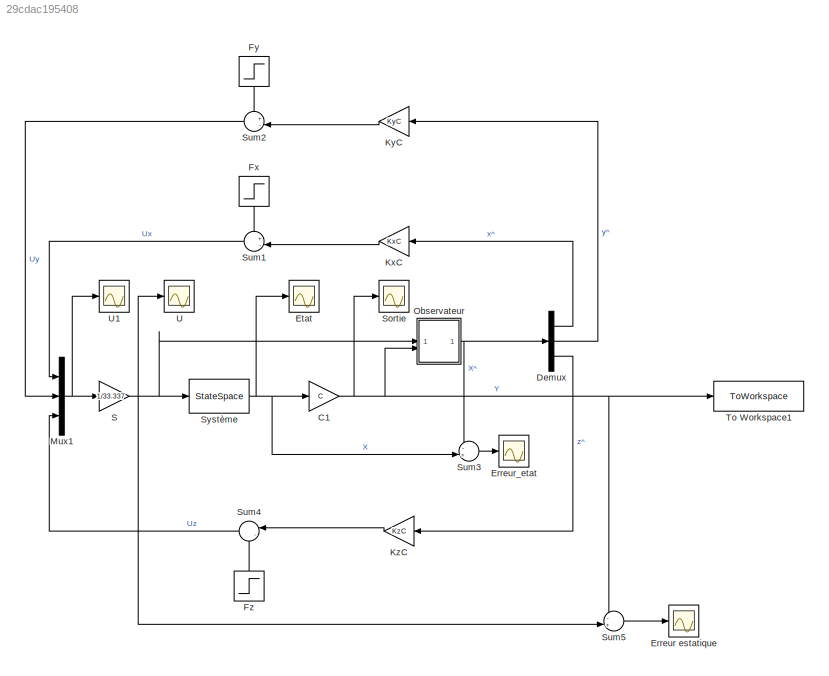
MODEL slx_29cdac195408
KIND model
CONFIG AbsTol = auto
CONFIG EnableMultiTasking = off
CONFIG FixedStep = auto
CONFIG MaxStep = 0.001
CONFIG MinStep = auto
CONFIG RelTol = 1e-3
CONFIG SampleTimeConstraint = Unconstrained
CONFIG SolverName = VariableStepAuto
CONFIG StartTime = 0.0
CONFIG StopTime = 10
BLOCK [Gain] C1
  Gain = C
  Multiplication = Matrix(K*u)
BLOCK [Demux] Demux
  Outputs = 3
BLOCK [Scope] Erreur estatique
  Floating = off
  NumInputPorts = 1
  ScopeSpecificationString = Simulink.scopes.TimeScopeBlockCfg('CurrentConfiguration', extmgr.ConfigurationSet(extmgr.Configuration('Core','General UI',true),extmgr.Configuration('Core','Source UI',true),extmgr.Configuration('Sources','WiredSimulink',true,'DataLoggingVariableName','ScopeData1'),extmgr.Configuration('Visuals','Time Domain',true,'SerializedDisplays',{struct('MinYLimReal','-49.5947','MaxYLimReal','58.75711','YLa...<+1520ch>
BLOCK [Scope] Erreur_etat
  Floating = off
  NumInputPorts = 1
  ScopeSpecificationString = Simulink.scopes.TimeScopeBlockCfg('CurrentConfiguration', extmgr.ConfigurationSet(extmgr.Configuration('Core','General UI',true),extmgr.Configuration('Core','Source UI',true),extmgr.Configuration('Sources','WiredSimulink',true,'DataLoggingVariableName','ScopeData1'),extmgr.Configuration('Visuals','Time Domain',true,'SerializedDisplays',{struct('MinYLimReal','-8.2297','MaxYLimReal','11.97116','YLab...<+1545ch>
BLOCK [Scope] Etat
  Floating = off
  NumInputPorts = 1
  ScopeSpecificationString = Simulink.scopes.TimeScopeBlockCfg('CurrentConfiguration', extmgr.ConfigurationSet(extmgr.Configuration('Core','General UI',true),extmgr.Configuration('Core','Source UI',true),extmgr.Configuration('Sources','WiredSimulink',true,'DataLoggingVariableName','ScopeData2'),extmgr.Configuration('Visuals','Time Domain',true,'SerializedDisplays',{struct('MinYLimReal','-13.23354','MaxYLimReal','6.14675','YLa...<+1530ch>
BLOCK [Step] Fx
  NameLocation = left
  SampleTime = 0
  Time = 0
BLOCK [Step] Fy
  NameLocation = left
  SampleTime = 0
  Time = 0
BLOCK [Step] Fz
  NameLocation = right
  SampleTime = 0
  Time = 0
BLOCK [Gain] KxC
  Gain = KxC
  Multiplication = Matrix(K*u)
BLOCK [Gain] KyC
  Gain = KyC
  Multiplication = Matrix(K*u)
BLOCK [Gain] KzC
  Gain = KzC
  Multiplication = Matrix(K*u)
BLOCK [Mux] Mux1
  DisplayOption = bar
  Inputs = 3
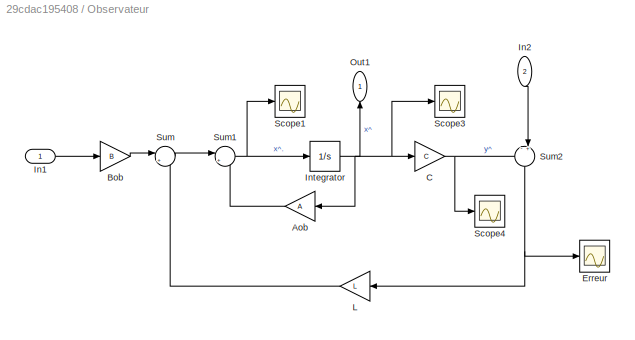
BLOCK [SubSystem] Observateur
BLOCK [Gain] Observateur/Aob
  Gain = A
  Multiplication = Matrix(K*u)
BLOCK [Gain] Observateur/Bob
  Gain = B
  Multiplication = Matrix(K*u)
BLOCK [Gain] Observateur/C
  Gain = C
  Multiplication = Matrix(K*u)
BLOCK [Scope] Observateur/Erreur
  Floating = off
  NumInputPorts = 1
  ScopeSpecificationString = Simulink.scopes.TimeScopeBlockCfg('CurrentConfiguration', extmgr.ConfigurationSet(extmgr.Configuration('Core','General UI',true),extmgr.Configuration('Core','Source UI',true),extmgr.Configuration('Sources','WiredSimulink',true,'DataLoggingVariableName','ScopeData4'),extmgr.Configuration('Visuals','Time Domain',true,'SerializedDisplays',{struct('MinYLimReal','-0.125','MaxYLimReal','0.125','YLabelRe...<+1539ch>
BLOCK [Inport] Observateur/In1
BLOCK [Inport] Observateur/In2
  NameLocation = left
  Port = 2
BLOCK [Integrator] Observateur/Integrator
BLOCK [Gain] Observateur/L
  Gain = L
  Multiplication = Matrix(K*u)
BLOCK [Outport] Observateur/Out1
  NameLocation = right
BLOCK [Scope] Observateur/Scope1
  Floating = off
  NumInputPorts = 1
  ScopeSpecificationString = Simulink.scopes.TimeScopeBlockCfg('CurrentConfiguration', extmgr.ConfigurationSet(extmgr.Configuration('Core','General UI',true),extmgr.Configuration('Core','Source UI',true),extmgr.Configuration('Sources','WiredSimulink',true,'DataLoggingVariableName','ScopeData1'),extmgr.Configuration('Visuals','Time Domain',true,'SerializedDisplays',{struct('MinYLimReal','-1615.70216','MaxYLimReal','1849.68617'...<+1562ch>
BLOCK [Scope] Observateur/Scope3
  Floating = off
  NumInputPorts = 1
  ScopeSpecificationString = Simulink.scopes.TimeScopeBlockCfg('CurrentConfiguration', extmgr.ConfigurationSet(extmgr.Configuration('Core','General UI',true),extmgr.Configuration('Core','Source UI',true),extmgr.Configuration('Sources','WiredSimulink',true,'DataLoggingVariableName','ScopeData2'),extmgr.Configuration('Visuals','Time Domain',true,'SerializedDisplays',{struct('MinYLimReal','-7.70651','MaxYLimReal','5.63694','YLab...<+1531ch>
BLOCK [Scope] Observateur/Scope4
  Floating = off
  NumInputPorts = 1
  ScopeSpecificationString = Simulink.scopes.TimeScopeBlockCfg('CurrentConfiguration', extmgr.ConfigurationSet(extmgr.Configuration('Core','General UI',true),extmgr.Configuration('Core','Source UI',true),extmgr.Configuration('Sources','WiredSimulink',true,'DataLoggingVariableName','ScopeData3'),extmgr.Configuration('Visuals','Time Domain',true,'SerializedDisplays',{struct('MinYLimReal','-0.72587','MaxYLimReal','4.89321','YLab...<+1512ch>
BLOCK [Sum] Observateur/Sum
  Inputs = |++
BLOCK [Sum] Observateur/Sum1
  Inputs = |++
BLOCK [Sum] Observateur/Sum2
  Inputs = -+|
  NameLocation = left
BLOCK [Gain] S
  Gain = 1/33.337
  Multiplication = Matrix(K*u)
BLOCK [Scope] Sortie
  Floating = off
  NumInputPorts = 1
  ScopeSpecificationString = Simulink.scopes.TimeScopeBlockCfg('CurrentConfiguration', extmgr.ConfigurationSet(extmgr.Configuration('Core','General UI',true),extmgr.Configuration('Core','Source UI',true),extmgr.Configuration('Sources','WiredSimulink',true,'DataLoggingVariableName','ScopeData3'),extmgr.Configuration('Visuals','Time Domain',true,'SerializedDisplays',{struct('MinYLimReal','-0.3779','MaxYLimReal','0.54044','YLabe...<+1506ch>
BLOCK [Sum] Sum1
  Inputs = +-|
BLOCK [Sum] Sum2
  Inputs = +-|
BLOCK [Sum] Sum3
  Inputs = -+|
BLOCK [Sum] Sum4
  Inputs = |-+
BLOCK [Sum] Sum5
  Inputs = -+|
BLOCK [StateSpace] Système
  A = A
  B = B
  C = eye(6)
  D = zeros(6,3)
  InitialCondition = [0.1; 0; 0.1; 0; -0.1; 0]
BLOCK [ToWorkspace] To Workspace1
  FixptAsFi = on
  MaxDataPoints = inf
  SampleTime = -1
  SaveFormat = Timeseries
  VariableName = simout
BLOCK [Scope] U
  Floating = off
  NumInputPorts = 1
  ScopeSpecificationString = Simulink.scopes.TimeScopeBlockCfg('CurrentConfiguration', extmgr.ConfigurationSet(extmgr.Configuration('Core','General UI',true),extmgr.Configuration('Core','Source UI',true),extmgr.Configuration('Sources','WiredSimulink',true,'DataLoggingVariableName','ScopeData4'),extmgr.Configuration('Visuals','Time Domain',true,'SerializedDisplays',{struct('MinYLimReal','-277.50241','MaxYLimReal','198.02066','...<+1524ch>
BLOCK [Scope] U1
  Floating = off
  NumInputPorts = 1
  ScopeSpecificationString = Simulink.scopes.TimeScopeBlockCfg('CurrentConfiguration', extmgr.ConfigurationSet(extmgr.Configuration('Core','General UI',true),extmgr.Configuration('Core','Source UI',true),extmgr.Configuration('Sources','WiredSimulink',true,'DataLoggingVariableName','ScopeData2'),extmgr.Configuration('Visuals','Time Domain',true,'SerializedDisplays',{struct('MinYLimReal','-1395.47451','MaxYLimReal','1410.89359'...<+1528ch>
NET C1:1 -> Observateur:2, Sortie:1, Sum5:1, To Workspace1:1
LINE Demux:1 -> KxC:1
LINE Demux:2 -> KyC:1
LINE Demux:3 -> KzC:1
LINE Fx:1 -> Sum1:1
LINE Fy:1 -> Sum2:1
LINE Fz:1 -> Sum4:2
LINE KxC:1 -> Sum1:2
LINE KyC:1 -> Sum2:2
LINE KzC:1 -> Sum4:1
NET Mux1:1 -> S:1, U1:1
LINE Observateur/Aob:1 -> Observateur/Sum1:2
LINE Observateur/Bob:1 -> Observateur/Sum:1
NET Observateur/C:1 -> Observateur/Scope4:1, Observateur/Sum2:1
LINE Observateur/In1:1 -> Observateur/Bob:1
LINE Observateur/In2:1 -> Observateur/Sum2:2
NET Observateur/Integrator:1 -> Observateur/Aob:1, Observateur/C:1, Observateur/Out1:1, Observateur/Scope3:1
LINE Observateur/L:1 -> Observateur/Sum:2
NET Observateur/Sum1:1 -> Observateur/Integrator:1, Observateur/Scope1:1
NET Observateur/Sum2:1 -> Observateur/Erreur:1, Observateur/L:1
LINE Observateur/Sum:1 -> Observateur/Sum1:1
NET Observateur:1 -> Demux:1, Sum3:1
NET S:1 -> Observateur:1, Sum5:2, Système:1, U:1
LINE Sum1:1 -> Mux1:1
LINE Sum2:1 -> Mux1:2
LINE Sum3:1 -> Erreur_etat:1
LINE Sum4:1 -> Mux1:3
LINE Sum5:1 -> Erreur estatique:1
NET Système:1 -> C1:1, Etat:1, Sum3:2
note: NET lines group one-source signal fan-out (src -> all destinations, sorted); 1:1 wires keep LINE
